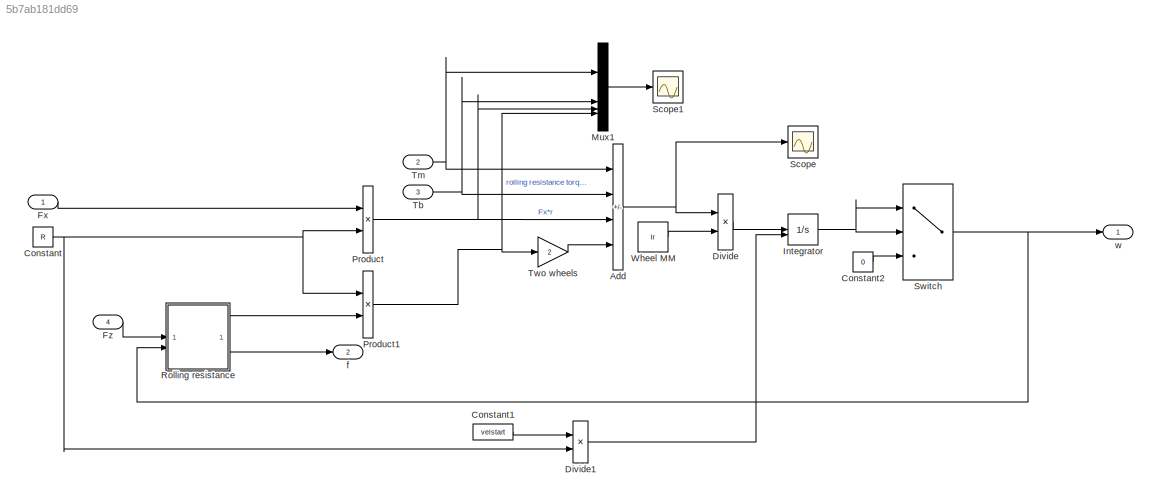
MODEL slx_5b7ab181dd69
KIND model
CONFIG AbsTol = auto
CONFIG EnableMultiTasking = off
CONFIG FixedStep = auto
CONFIG MaxStep = auto
CONFIG MinStep = auto
CONFIG RelTol = 1e-3
CONFIG SampleTimeConstraint = Unconstrained
CONFIG SolverName = ode45
CONFIG StartTime = 0.0
CONFIG StopTime = 10.0
BLOCK [Sum] Add
  IconShape = rectangular
  Inputs = +---
BLOCK [Constant] Constant
  Value = R
BLOCK [Constant] Constant1
  Value = velstart
BLOCK [Constant] Constant2
  Value = 0
BLOCK [Product] Divide
  Inputs = */
BLOCK [Product] Divide1
  Inputs = */
BLOCK [Inport] Fx
BLOCK [Inport] Fz
  Port = 4
BLOCK [Integrator] Integrator
  InitialConditionSource = external
BLOCK [Mux] Mux1
  DisplayOption = bar
BLOCK [Product] Product
BLOCK [Product] Product1
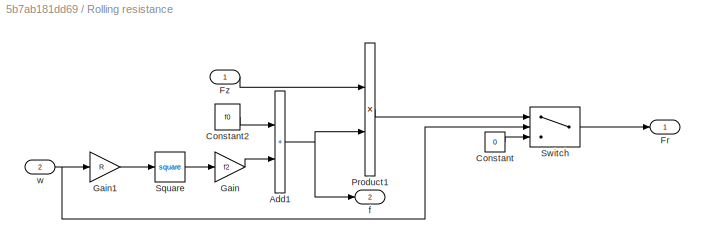
BLOCK [SubSystem] Rolling resistance
BLOCK [Sum] Rolling resistance/Add1
  IconShape = rectangular
BLOCK [Constant] Rolling resistance/Constant
  Value = 0
BLOCK [Constant] Rolling resistance/Constant2
  Value = f0
BLOCK [Outport] Rolling resistance/Fr
BLOCK [Inport] Rolling resistance/Fz
BLOCK [Gain] Rolling resistance/Gain
  Gain = f2
BLOCK [Gain] Rolling resistance/Gain1
  Gain = R
BLOCK [Product] Rolling resistance/Product1
BLOCK [Math] Rolling resistance/Square
  Operator = square
BLOCK [Switch] Rolling resistance/Switch
  Criteria = u2 > Threshold
  InputSameDT = off
  SaturateOnIntegerOverflow = off
BLOCK [Outport] Rolling resistance/f
  Port = 2
BLOCK [Inport] Rolling resistance/w
  Port = 2
BLOCK [Scope] Scope
  Floating = off
  NumInputPorts = 1
  ScopeSpecificationString = Simulink.scopes.TimeScopeBlockCfg('CurrentConfiguration', extmgr.ConfigurationSet(extmgr.Configuration('Core','General UI',true),extmgr.Configuration('Core','Source UI',true),extmgr.Configuration('Sources','WiredSimulink',true,'DataLoggingVariableName','ScopeData1'),extmgr.Configuration('Visuals','Time Domain',true,'SerializedDisplays',{struct('MinYLimReal','-189.66077','MaxYLimReal','392.27352','...<+1511ch>
BLOCK [Scope] Scope1
  Floating = off
  NumInputPorts = 1
  ScopeSpecificationString = Simulink.scopes.TimeScopeBlockCfg('CurrentConfiguration', extmgr.ConfigurationSet(extmgr.Configuration('Core','General UI',true),extmgr.Configuration('Core','Source UI',true),extmgr.Configuration('Sources','WiredSimulink',true,'DataLoggingVariableName','ScopeData1'),extmgr.Configuration('Visuals','Time Domain',true,'SerializedDisplays',{struct('MinYLimReal','30.97187','MaxYLimReal','31.08569','YLa...<+1686ch>
BLOCK [Switch] Switch
  Criteria = u2 > Threshold
  InputSameDT = off
  SaturateOnIntegerOverflow = off
BLOCK [Inport] Tb
  Port = 3
BLOCK [Inport] Tm
  Port = 2
BLOCK [Gain] Two wheels
  Gain = 2
BLOCK [Constant] Wheel MM
  Value = Ir
BLOCK [Outport] f
  Port = 2
BLOCK [Outport] w
NET Add:1 -> Divide:1, Scope:1
LINE Constant1:1 -> Divide1:1
LINE Constant2:1 -> Switch:3
NET Constant:1 -> Divide1:2, Product1:1, Product:2
LINE Divide1:1 -> Integrator:2
LINE Divide:1 -> Integrator:1
LINE Fx:1 -> Product:1
LINE Fz:1 -> Rolling resistance:1
NET Integrator:1 -> Switch:1, Switch:2
LINE Mux1:1 -> Scope1:1
NET Product1:1 -> Mux1:4, Two wheels:1
NET Product:1 -> Add:3, Mux1:3
NET Rolling resistance/Add1:1 -> Rolling resistance/Product1:2, Rolling resistance/f:1
LINE Rolling resistance/Constant2:1 -> Rolling resistance/Add1:1
LINE Rolling resistance/Constant:1 -> Rolling resistance/Switch:3
LINE Rolling resistance/Fz:1 -> Rolling resistance/Product1:1
LINE Rolling resistance/Gain1:1 -> Rolling resistance/Square:1
LINE Rolling resistance/Gain:1 -> Rolling resistance/Add1:2
LINE Rolling resistance/Product1:1 -> Rolling resistance/Switch:1
LINE Rolling resistance/Square:1 -> Rolling resistance/Gain:1
LINE Rolling resistance/Switch:1 -> Rolling resistance/Fr:1
NET Rolling resistance/w:1 -> Rolling resistance/Gain1:1, Rolling resistance/Switch:2
LINE Rolling resistance:1 -> Product1:2
LINE Rolling resistance:2 -> f:1
NET Switch:1 -> Rolling resistance:2, w:1
NET Tb:1 -> Add:2, Mux1:2
NET Tm:1 -> Add:1, Mux1:1
LINE Two wheels:1 -> Add:4
LINE Wheel MM:1 -> Divide:2
note: NET lines group one-source signal fan-out (src -> all destinations, sorted); 1:1 wires keep LINE
